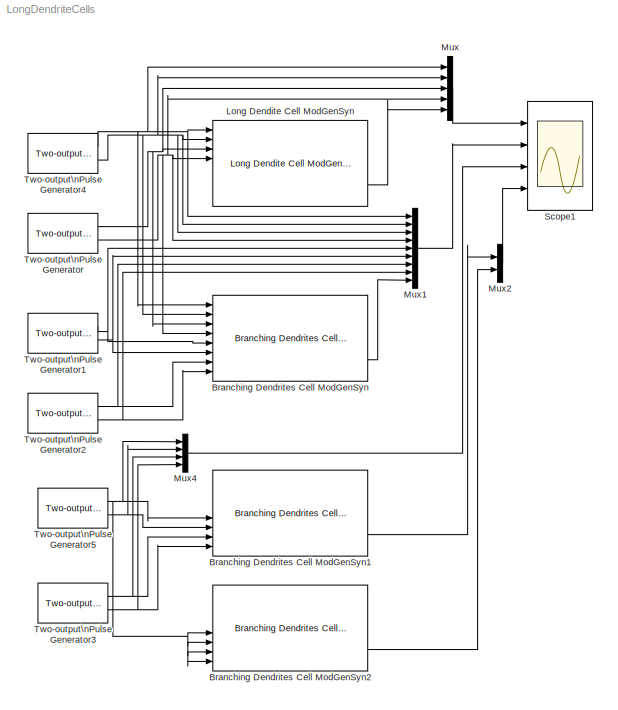
MODEL LongDendriteCells
KIND model
BLOCK [Reference] Branching Dendrites Cell ModGenSyn  REF=NeuroModelerLibrary/Dendrites Cells/Branching Dendrites Cell ModGenSyn
  AllowZeroVariantControls = off
  AutoFrameSizeCalculation = off
  Latency = 0
  NameLocation = top
  Ports = [8, 3]
  PropagateVariantConditions = off
  RTWMemSecDataConstants = Inherit from model
  RTWMemSecDataInternal = Inherit from model
  RTWMemSecDataParameters = Inherit from model
  RTWMemSecFuncExecute = Inherit from model
  RTWMemSecFuncInitTerm = Inherit from model
  SID = 17
  ShowPortLabels = FromPortIcon
  SourceBlock = NeuroModelerLibrary/Dendrites Cells/Branching Dendrites Cell ModGenSyn
  SourceType = SubSystem
  SystemSampleTime = -1
  VariantActivationTime = update diagram
BLOCK [Reference] Branching Dendrites Cell ModGenSyn1  REF=NeuroModelerLibrary/Dendrites Cells/Branching Dendrites Cell ModGenSyn
  AllowZeroVariantControls = off
  AutoFrameSizeCalculation = off
  Latency = 0
  NameLocation = top
  Ports = [8, 3]
  PropagateVariantConditions = off
  RTWMemSecDataConstants = Inherit from model
  RTWMemSecDataInternal = Inherit from model
  RTWMemSecDataParameters = Inherit from model
  RTWMemSecFuncExecute = Inherit from model
  RTWMemSecFuncInitTerm = Inherit from model
  SID = 18
  ShowPortLabels = FromPortIcon
  SourceBlock = NeuroModelerLibrary/Dendrites Cells/Branching Dendrites Cell ModGenSyn
  SourceType = SubSystem
  SystemSampleTime = -1
  VariantActivationTime = update diagram
BLOCK [Reference] Branching Dendrites Cell ModGenSyn2  REF=NeuroModelerLibrary/Dendrites Cells/Branching Dendrites Cell ModGenSyn
  AllowZeroVariantControls = off
  AutoFrameSizeCalculation = off
  Latency = 0
  NameLocation = top
  Ports = [8, 3]
  PropagateVariantConditions = off
  RTWMemSecDataConstants = Inherit from model
  RTWMemSecDataInternal = Inherit from model
  RTWMemSecDataParameters = Inherit from model
  RTWMemSecFuncExecute = Inherit from model
  RTWMemSecFuncInitTerm = Inherit from model
  SID = 19
  ShowPortLabels = FromPortIcon
  SourceBlock = NeuroModelerLibrary/Dendrites Cells/Branching Dendrites Cell ModGenSyn
  SourceType = SubSystem
  SystemSampleTime = -1
  VariantActivationTime = update diagram
BLOCK [Reference] Long Dendite Cell ModGenSyn  REF=NeuroModelerLibrary/Dendrites Cells/Long Dendite Cell ModGenSyn
  AllowZeroVariantControls = off
  AutoFrameSizeCalculation = off
  Latency = 0
  NameLocation = top
  Ports = [8, 3]
  PropagateVariantConditions = off
  RTWMemSecDataConstants = Inherit from model
  RTWMemSecDataInternal = Inherit from model
  RTWMemSecDataParameters = Inherit from model
  RTWMemSecFuncExecute = Inherit from model
  RTWMemSecFuncInitTerm = Inherit from model
  SID = 16
  ShowPortLabels = FromPortIcon
  SourceBlock = NeuroModelerLibrary/Dendrites Cells/Long Dendite Cell ModGenSyn
  SourceType = SubSystem
  SystemSampleTime = -1
  VariantActivationTime = update diagram
BLOCK [Mux] Mux
  DisplayOption = bar
  Inputs = 5
  Ports = [5, 1]
  SID = 5
BLOCK [Mux] Mux1
  DisplayOption = bar
  Inputs = 9
  Ports = [9, 1]
  SID = 6
BLOCK [Mux] Mux2
  DisplayOption = bar
  Inputs = 2
  Ports = [2, 1]
  SID = 7
BLOCK [Mux] Mux4
  DisplayOption = bar
  Ports = [4, 1]
  SID = 8
BLOCK [Scope] Scope1
  Floating = off
  NumInputPorts = 4
  Ports = [4]
  SID = 9
  ScopeSpecificationString = Simulink.scopes.TimeScopeBlockCfg('CurrentConfiguration', extmgr.ConfigurationSet(extmgr.Configuration('Core','General UI',true),extmgr.Configuration('Core','Source UI',true),extmgr.Configuration('Sources','WiredSimulink',true,'DataLoggingSaveFormat','StructureWithTime','DataLoggingMaxPoints','5000000','DataLoggingLimitDataPoints',true,'DataLoggingDecimation','1','DataLoggingDecimateData',true),ex...<+4357ch>
BLOCK [Reference] Two-output\nPulse Generator  REF=NeuroModelerLibrary/Support/Two-output\nPulse Generator
  A = 1
  OOff1 = 1.0
  OOff2 = 1.2
  OOn1 = 0.9
  OOn2 = 1.1
  P1 = 200
  P2 = 200
  PW = 1
  Ports = [0, 2]
  RTWMemSecDataConstants = Inherit from model
  RTWMemSecDataInternal = Inherit from model
  RTWMemSecDataParameters = Inherit from model
  RTWMemSecFuncExecute = Inherit from model
  RTWMemSecFuncInitTerm = Inherit from model
  SID = 10
  ST = 0.001
  SourceBlock = NeuroModelerLibrary/Support/Two-output\nPulse Generator
BLOCK [Reference] Two-output\nPulse Generator1  REF=NeuroModelerLibrary/Support/Two-output\nPulse Generator
  A = 1
  OOff1 = 0.6
  OOff2 = 0.8
  OOn1 = 0.55
  OOn2 = 0.72
  P1 = 200
  P2 = 200
  PW = 1
  Ports = [0, 2]
  RTWMemSecDataConstants = Inherit from model
  RTWMemSecDataInternal = Inherit from model
  RTWMemSecDataParameters = Inherit from model
  RTWMemSecFuncExecute = Inherit from model
  RTWMemSecFuncInitTerm = Inherit from model
  SID = 11
  ST = 0.001
  SourceBlock = NeuroModelerLibrary/Support/Two-output\nPulse Generator
BLOCK [Reference] Two-output\nPulse Generator2  REF=NeuroModelerLibrary/Support/Two-output\nPulse Generator
  A = 1
  OOff1 = 1.1
  OOff2 = 1.2
  OOn1 = 0.95
  OOn2 = 1.12
  P1 = 200
  P2 = 200
  PW = 1
  Ports = [0, 2]
  RTWMemSecDataConstants = Inherit from model
  RTWMemSecDataInternal = Inherit from model
  RTWMemSecDataParameters = Inherit from model
  RTWMemSecFuncExecute = Inherit from model
  RTWMemSecFuncInitTerm = Inherit from model
  SID = 12
  ST = 0.001
  SourceBlock = NeuroModelerLibrary/Support/Two-output\nPulse Generator
BLOCK [Reference] Two-output\nPulse Generator3  REF=NeuroModelerLibrary/Support/Two-output\nPulse Generator
  A = 1
  OOff1 = 0.7
  OOff2 = 0.7
  OOn1 = 0.6
  OOn2 = 0.65
  P1 = 200
  P2 = 200
  PW = 1
  Ports = [0, 2]
  RTWMemSecDataConstants = Inherit from model
  RTWMemSecDataInternal = Inherit from model
  RTWMemSecDataParameters = Inherit from model
  RTWMemSecFuncExecute = Inherit from model
  RTWMemSecFuncInitTerm = Inherit from model
  SID = 13
  ST = 0.001
  SourceBlock = NeuroModelerLibrary/Support/Two-output\nPulse Generator
BLOCK [Reference] Two-output\nPulse Generator4  REF=NeuroModelerLibrary/Support/Two-output\nPulse Generator
  A = 1
  OOff1 = 0.6
  OOff2 = 0.8
  OOn1 = 0.5
  OOn2 = 0.7
  P1 = 200
  P2 = 200
  PW = 1
  Ports = [0, 2]
  RTWMemSecDataConstants = Inherit from model
  RTWMemSecDataInternal = Inherit from model
  RTWMemSecDataParameters = Inherit from model
  RTWMemSecFuncExecute = Inherit from model
  RTWMemSecFuncInitTerm = Inherit from model
  SID = 14
  ST = 0.001
  SourceBlock = NeuroModelerLibrary/Support/Two-output\nPulse Generator
BLOCK [Reference] Two-output\nPulse Generator5  REF=NeuroModelerLibrary/Support/Two-output\nPulse Generator
  A = 1
  OOff1 = 0.6
  OOff2 = 0.6
  OOn1 = 0.5
  OOn2 = 0.55
  P1 = 200
  P2 = 200
  PW = 1
  Ports = [0, 2]
  RTWMemSecDataConstants = Inherit from model
  RTWMemSecDataInternal = Inherit from model
  RTWMemSecDataParameters = Inherit from model
  RTWMemSecFuncExecute = Inherit from model
  RTWMemSecFuncInitTerm = Inherit from model
  SID = 15
  ST = 0.001
  SourceBlock = NeuroModelerLibrary/Support/Two-output\nPulse Generator
LINE Branching Dendrites Cell ModGenSyn1:3 -> Mux2:1
LINE Branching Dendrites Cell ModGenSyn2:3 -> Mux2:2
LINE Branching Dendrites Cell ModGenSyn:3 -> Mux1:9
LINE Long Dendite Cell ModGenSyn:3 -> Mux:5
LINE Mux1:1 -> Scope1:2
LINE Mux2:1 -> Scope1:4
LINE Mux4:1 -> Scope1:3
LINE Mux:1 -> Scope1:1
NET Two-output\nPulse Generator1:1 -> Branching Dendrites Cell ModGenSyn:5, Mux1:5
NET Two-output\nPulse Generator1:2 -> Branching Dendrites Cell ModGenSyn:6, Mux1:6
NET Two-output\nPulse Generator2:1 -> Branching Dendrites Cell ModGenSyn:7, Mux1:7
NET Two-output\nPulse Generator2:2 -> Branching Dendrites Cell ModGenSyn:8, Mux1:8
NET Two-output\nPulse Generator3:1 -> Branching Dendrites Cell ModGenSyn1:7, Mux4:3
NET Two-output\nPulse Generator3:2 -> Branching Dendrites Cell ModGenSyn1:8, Mux4:4
NET Two-output\nPulse Generator4:1 -> Branching Dendrites Cell ModGenSyn:1, Long Dendite Cell ModGenSyn:1, Mux1:1, Mux:1
NET Two-output\nPulse Generator4:2 -> Branching Dendrites Cell ModGenSyn:2, Long Dendite Cell ModGenSyn:2, Mux1:2, Mux1:3, Mux:2
NET Two-output\nPulse Generator5:1 -> Branching Dendrites Cell ModGenSyn1:5, Branching Dendrites Cell ModGenSyn2:5, Branching Dendrites Cell ModGenSyn2:6, Branching Dendrites Cell ModGenSyn2:7, Branching Dendrites Cell ModGenSyn2:8, Mux4:1
NET Two-output\nPulse Generator5:2 -> Branching Dendrites Cell ModGenSyn1:6, Mux4:2
NET Two-output\nPulse Generator:1 -> Branching Dendrites Cell ModGenSyn:3, Long Dendite Cell ModGenSyn:3, Mux:3
NET Two-output\nPulse Generator:2 -> Branching Dendrites Cell ModGenSyn:4, Long Dendite Cell ModGenSyn:4, Mux1:4, Mux:4
note: NET lines group one-source signal fan-out (src -> all destinations, sorted); 1:1 wires keep LINE
